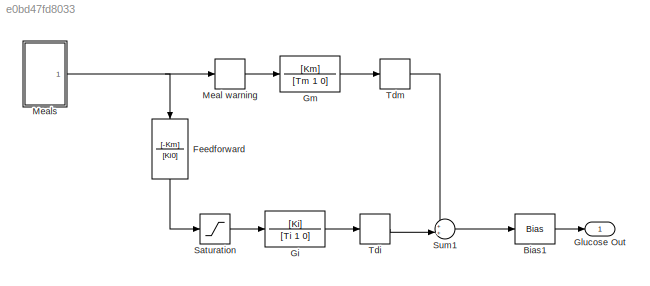
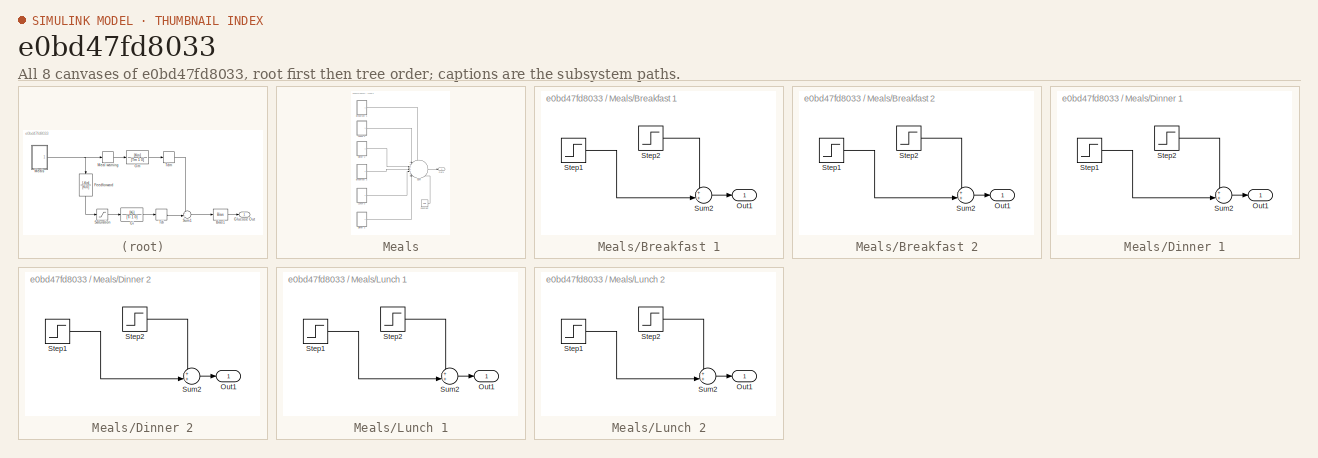
[diagram: thumbnail index - all 8 canvases of the model, root first then tree order]
MODEL slx_e0bd47fd8033
KIND model
CONFIG AbsTol = auto
CONFIG FixedStep = 1
CONFIG MaxStep = auto
CONFIG MinStep = auto
CONFIG RelTol = 1e-3
CONFIG SampleTimeConstraint = Unconstrained
CONFIG Solver = FixedStepAuto
CONFIG SolverMode = Auto
CONFIG SolverName = FixedStepAuto
CONFIG StartTime = 0.0
CONFIG StopTime = 48*60
BLOCK [Bias] Bias1
  Bias = 110
  SaturateOnIntegerOverflow = off
BLOCK [TransferFcn] Feedforward
  Denominator = [Ki0]
  Numerator = [-Km]
BLOCK [TransferFcn] Gi
  Denominator = [Ti 1 0]
  Numerator = [Ki]
BLOCK [Outport] Glucose Out
  IconDisplay = Port number
BLOCK [TransferFcn] Gm
  Denominator = [Tm 1 0]
  Numerator = [Km]
BLOCK [TransportDelay] Meal warning
  DelayTime = 10
  Ports = [1, 1]
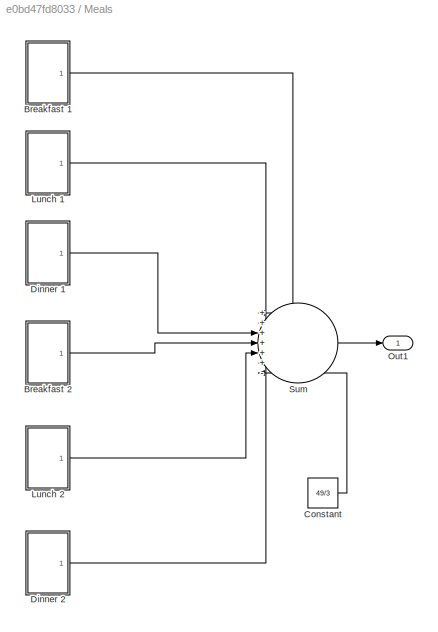
BLOCK [SubSystem] Meals
  Ports = [0, 1]
  RequestExecContextInheritance = off
  Variant = off
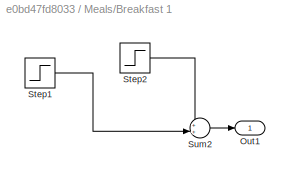
BLOCK [SubSystem] Meals/Breakfast 1
  Ports = [0, 1]
  RequestExecContextInheritance = off
  Variant = off
BLOCK [Outport] Meals/Breakfast 1/Out1
  IconDisplay = Port number
BLOCK [Step] Meals/Breakfast 1/Step1
  After = 25/10
  SampleTime = 0
  Time = 60
BLOCK [Step] Meals/Breakfast 1/Step2
  After = 0
  Before = 25/10
  SampleTime = 0
  Time = 70
BLOCK [Sum] Meals/Breakfast 1/Sum2
  IconShape = round
  InputSameDT = off
  Inputs = ++|
  OutDataTypeStr = Inherit: Inherit via internal rule
  Ports = [2, 1]
  SaturateOnIntegerOverflow = off
BLOCK [SubSystem] Meals/Breakfast 2
  Ports = [0, 1]
  RequestExecContextInheritance = off
  Variant = off
BLOCK [Outport] Meals/Breakfast 2/Out1
  IconDisplay = Port number
BLOCK [Step] Meals/Breakfast 2/Step1
  After = 25/10
  SampleTime = 0
  Time = 25*60
BLOCK [Step] Meals/Breakfast 2/Step2
  After = 0
  Before = 25/10
  SampleTime = 0
  Time = 25*60+10
BLOCK [Sum] Meals/Breakfast 2/Sum2
  IconShape = round
  InputSameDT = off
  Inputs = ++|
  OutDataTypeStr = Inherit: Inherit via internal rule
  Ports = [2, 1]
  SaturateOnIntegerOverflow = off
BLOCK [Constant] Meals/Constant
  Value = 49/3
BLOCK [SubSystem] Meals/Dinner 1
  Ports = [0, 1]
  RequestExecContextInheritance = off
  Variant = off
BLOCK [Outport] Meals/Dinner 1/Out1
  IconDisplay = Port number
BLOCK [Step] Meals/Dinner 1/Step1
  After = 60/20
  SampleTime = 0
  Time = 13*60
BLOCK [Step] Meals/Dinner 1/Step2
  After = 0
  Before = 60/20
  SampleTime = 0
  Time = 13*60+20
BLOCK [Sum] Meals/Dinner 1/Sum2
  IconShape = round
  InputSameDT = off
  Inputs = ++|
  OutDataTypeStr = Inherit: Inherit via internal rule
  Ports = [2, 1]
  SaturateOnIntegerOverflow = off
BLOCK [SubSystem] Meals/Dinner 2
  Ports = [0, 1]
  RequestExecContextInheritance = off
  Variant = off
BLOCK [Outport] Meals/Dinner 2/Out1
  IconDisplay = Port number
BLOCK [Step] Meals/Dinner 2/Step1
  After = 60/20
  SampleTime = 0
  Time = 37*60
BLOCK [Step] Meals/Dinner 2/Step2
  After = 0
  Before = 60/20
  SampleTime = 0
  Time = 37*60+20
BLOCK [Sum] Meals/Dinner 2/Sum2
  IconShape = round
  InputSameDT = off
  Inputs = ++|
  OutDataTypeStr = Inherit: Inherit via internal rule
  Ports = [2, 1]
  SaturateOnIntegerOverflow = off
BLOCK [SubSystem] Meals/Lunch 1
  Ports = [0, 1]
  RequestExecContextInheritance = off
  Variant = off
BLOCK [Outport] Meals/Lunch 1/Out1
  IconDisplay = Port number
BLOCK [Step] Meals/Lunch 1/Step1
  After = 40/15
  SampleTime = 0
  Time = 7*60
BLOCK [Step] Meals/Lunch 1/Step2
  After = 0
  Before = 40/15
  SampleTime = 0
  Time = 7*60+15
BLOCK [Sum] Meals/Lunch 1/Sum2
  IconShape = round
  InputSameDT = off
  Inputs = ++|
  OutDataTypeStr = Inherit: Inherit via internal rule
  Ports = [2, 1]
  SaturateOnIntegerOverflow = off
BLOCK [SubSystem] Meals/Lunch 2
  Ports = [0, 1]
  RequestExecContextInheritance = off
  Variant = off
BLOCK [Outport] Meals/Lunch 2/Out1
  IconDisplay = Port number
BLOCK [Step] Meals/Lunch 2/Step1
  After = 40/15
  SampleTime = 0
  Time = 31*60
BLOCK [Step] Meals/Lunch 2/Step2
  After = 0
  Before = 40/15
  SampleTime = 0
  Time = 31*60+15
BLOCK [Sum] Meals/Lunch 2/Sum2
  IconShape = round
  InputSameDT = off
  Inputs = ++|
  OutDataTypeStr = Inherit: Inherit via internal rule
  Ports = [2, 1]
  SaturateOnIntegerOverflow = off
BLOCK [Outport] Meals/Out1
  IconDisplay = Port number
BLOCK [Sum] Meals/Sum
  IconShape = round
  InputSameDT = off
  Inputs = ++++++-
  OutDataTypeStr = Inherit: Inherit via internal rule
  Ports = [7, 1]
  SaturateOnIntegerOverflow = off
BLOCK [Saturate] Saturation
  InputPortMap = u0
  LowerLimit = 0
  Ports = [1, 1]
  UpperLimit = 166
BLOCK [Sum] Sum1
  IconShape = round
  InputSameDT = off
  Inputs = ++|
  OutDataTypeStr = Inherit: Inherit via internal rule
  Ports = [2, 1]
  SaturateOnIntegerOverflow = off
BLOCK [TransportDelay] Tdi
  DelayTime = Tdi
  Ports = [1, 1]
BLOCK [TransportDelay] Tdm
  DelayTime = Tdm
  Ports = [1, 1]
LINE Bias1:1 -> Glucose Out:1
LINE Feedforward:1 -> Saturation:1
LINE Gi:1 -> Tdi:1
LINE Gm:1 -> Tdm:1
LINE Meal warning:1 -> Gm:1
LINE Meals/Breakfast 1/Step1:1 -> Meals/Breakfast 1/Sum2:2
LINE Meals/Breakfast 1/Step2:1 -> Meals/Breakfast 1/Sum2:1
LINE Meals/Breakfast 1/Sum2:1 -> Meals/Breakfast 1/Out1:1
LINE Meals/Breakfast 1:1 -> Meals/Sum:1
LINE Meals/Breakfast 2/Step1:1 -> Meals/Breakfast 2/Sum2:2
LINE Meals/Breakfast 2/Step2:1 -> Meals/Breakfast 2/Sum2:1
LINE Meals/Breakfast 2/Sum2:1 -> Meals/Breakfast 2/Out1:1
LINE Meals/Breakfast 2:1 -> Meals/Sum:4
LINE Meals/Constant:1 -> Meals/Sum:7
LINE Meals/Dinner 1/Step1:1 -> Meals/Dinner 1/Sum2:2
LINE Meals/Dinner 1/Step2:1 -> Meals/Dinner 1/Sum2:1
LINE Meals/Dinner 1/Sum2:1 -> Meals/Dinner 1/Out1:1
LINE Meals/Dinner 1:1 -> Meals/Sum:3
LINE Meals/Dinner 2/Step1:1 -> Meals/Dinner 2/Sum2:2
LINE Meals/Dinner 2/Step2:1 -> Meals/Dinner 2/Sum2:1
LINE Meals/Dinner 2/Sum2:1 -> Meals/Dinner 2/Out1:1
LINE Meals/Dinner 2:1 -> Meals/Sum:6
LINE Meals/Lunch 1/Step1:1 -> Meals/Lunch 1/Sum2:2
LINE Meals/Lunch 1/Step2:1 -> Meals/Lunch 1/Sum2:1
LINE Meals/Lunch 1/Sum2:1 -> Meals/Lunch 1/Out1:1
LINE Meals/Lunch 1:1 -> Meals/Sum:2
LINE Meals/Lunch 2/Step1:1 -> Meals/Lunch 2/Sum2:2
LINE Meals/Lunch 2/Step2:1 -> Meals/Lunch 2/Sum2:1
LINE Meals/Lunch 2/Sum2:1 -> Meals/Lunch 2/Out1:1
LINE Meals/Lunch 2:1 -> Meals/Sum:5
LINE Meals/Sum:1 -> Meals/Out1:1
NET Meals:1 -> Feedforward:1, Meal warning:1
LINE Saturation:1 -> Gi:1
LINE Sum1:1 -> Bias1:1
LINE Tdi:1 -> Sum1:2
LINE Tdm:1 -> Sum1:1
note: NET lines group one-source signal fan-out (src -> all destinations, sorted); 1:1 wires keep LINE
